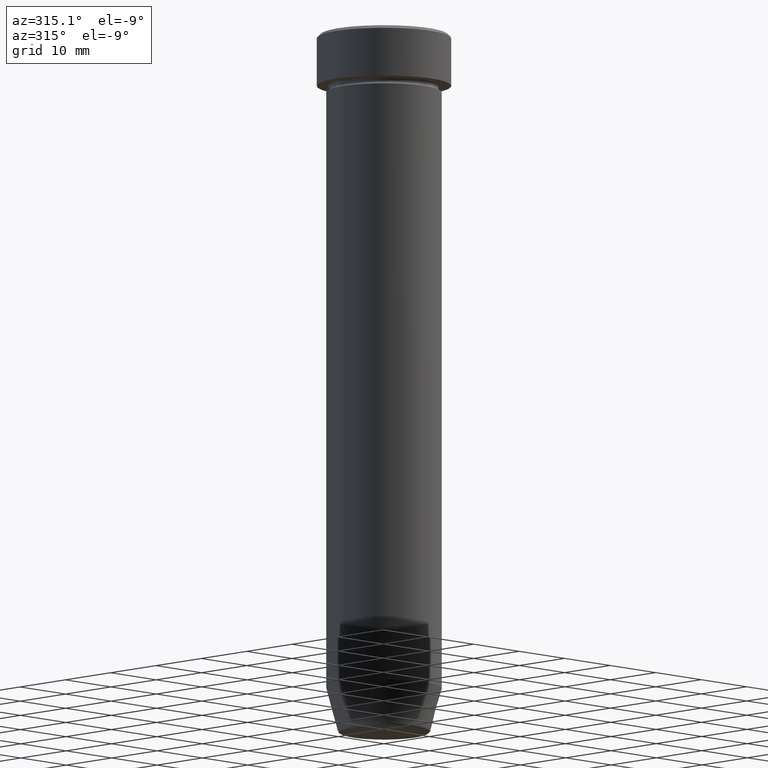
[diagram: clean part render]
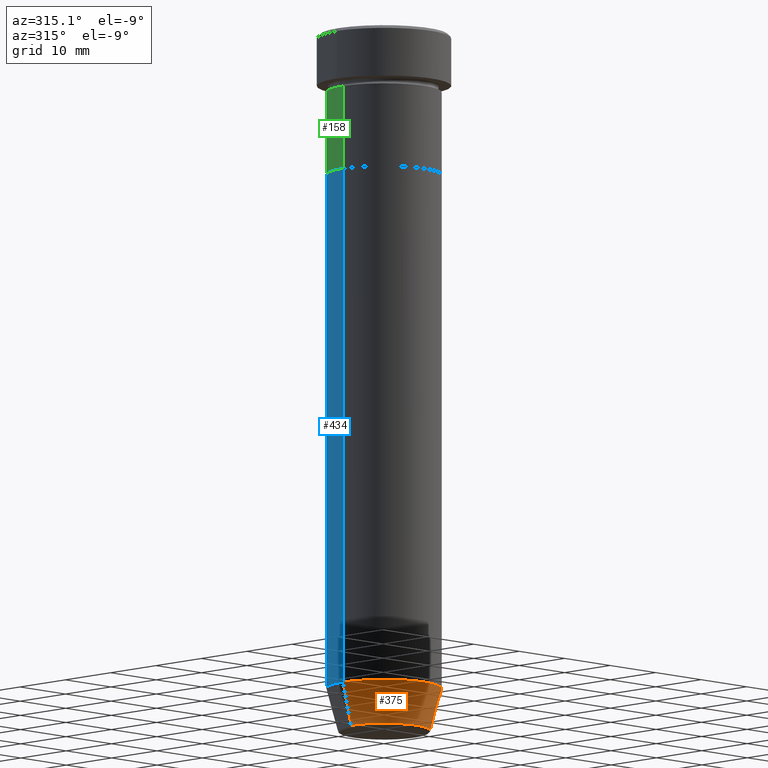
[diagram: same view with three faces highlighted in distinct colors, each labeled with its STEP entity id]
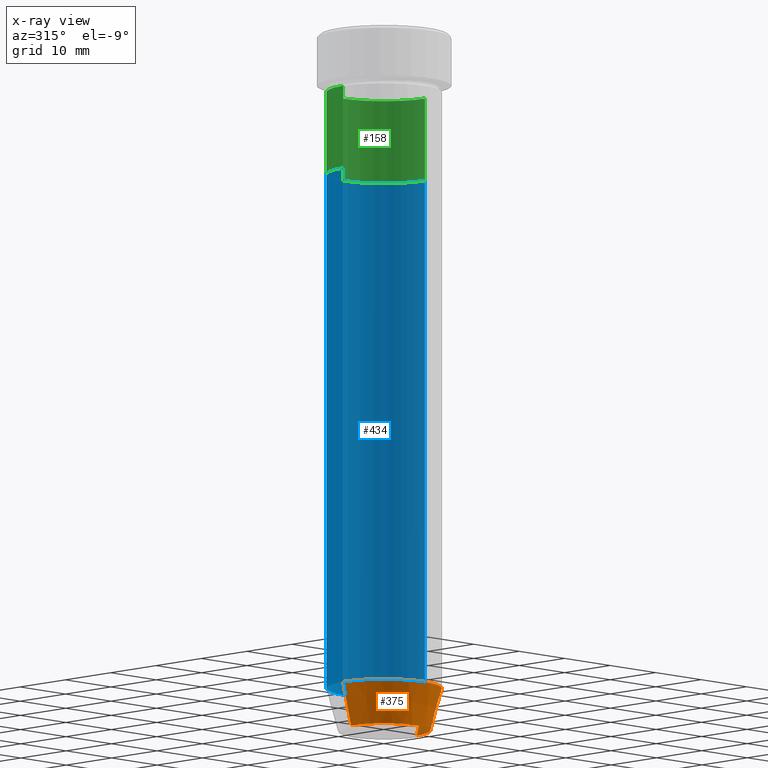
[diagram: x-ray of the same camera — body ghosted, the three highlighted faces saturated]
A machine part, auxiliary view with three faces highlighted in distinct colors.
The next image is the same camera in x-ray (body ghosted, the three faces saturated) — at least one of them is partly hidden behind the body in this view.
Their STEP definitions:

[orange] entity #375 — the highlighted conical surface has half-angle 15 deg.
#3 = FACE_OUTER_BOUND ( 'NONE', #287, .T. ) ;
#13 = DIRECTION ( 'NONE',  ( -0.000000000000000000, -0.000000000000000000, 1.000000000000000000 ) ) ;
#49 = DIRECTION ( 'NONE',  ( -0.000000000000000000, -0.000000000000000000, 1.000000000000000000 ) ) ;
#58 = DIRECTION ( 'NONE',  ( -0.2588190451025210725, 3.169619151431769255E-17, 0.9659258262890680902 ) ) ;
#66 = CARTESIAN_POINT ( 'NONE',  ( 7.124355652982136355, 0.000000000000000000, -109.9999999999999858 ) ) ;
#106 = EDGE_CURVE ( 'NONE', #110, #536, #145, .T. ) ;
#107 = VERTEX_POINT ( 'NONE', #270 ) ;
#110 = VERTEX_POINT ( 'NONE', #275 ) ;
#123 = VECTOR ( 'NONE', #58, 1000.000000000000114 ) ;
#139 = CONICAL_SURFACE ( 'NONE', #535, 7.124355652982136355, 0.2617993877991497964 ) ;
#145 = CIRCLE ( 'NONE', #466, 9.000000000000000000 ) ;
#164 = ORIENTED_EDGE ( 'NONE', *, *, #549, .T. ) ;
#171 = CIRCLE ( 'NONE', #594, 7.223655072137189492 ) ;
#190 = VERTEX_POINT ( 'NONE', #338 ) ;
#192 = EDGE_CURVE ( 'NONE', #190, #536, #307, .T. ) ;
#238 = EDGE_CURVE ( 'NONE', #107, #110, #255, .T. ) ;
#255 = LINE ( 'NONE', #482, #123 ) ;
#257 = CARTESIAN_POINT ( 'NONE',  ( 0.000000000000000000, 0.000000000000000000, -109.6294095225512564 ) ) ;
#270 = CARTESIAN_POINT ( 'NONE',  ( -7.223655072137189492, 9.934123627281763137E-16, -109.6294095225512564 ) ) ;
#275 = CARTESIAN_POINT ( 'NONE',  ( -9.000000000000000000, 1.102182119232617714E-15, -102.9999999999999858 ) ) ;
#287 = EDGE_LOOP ( 'NONE', ( #380, #164, #577, #344 ) ) ;
#305 = VECTOR ( 'NONE', #435, 1000.000000000000114 ) ;
#307 = LINE ( 'NONE', #66, #305 ) ;
#328 = CARTESIAN_POINT ( 'NONE',  ( 0.000000000000000000, 0.000000000000000000, -109.9999999999999858 ) ) ;
#337 = DIRECTION ( 'NONE',  ( 1.000000000000000000, 0.000000000000000000, 0.000000000000000000 ) ) ;
#338 = CARTESIAN_POINT ( 'NONE',  ( 7.223655072137189492, 0.000000000000000000, -109.6294095225512564 ) ) ;
#344 = ORIENTED_EDGE ( 'NONE', *, *, #106, .F. ) ;
#348 = DIRECTION ( 'NONE',  ( -0.000000000000000000, -0.000000000000000000, 1.000000000000000000 ) ) ;
#375 = ADVANCED_FACE ( 'NONE', ( #3 ), #139, .T. ) ;
#380 = ORIENTED_EDGE ( 'NONE', *, *, #238, .F. ) ;
#391 = CARTESIAN_POINT ( 'NONE',  ( 9.000000000000000000, 0.000000000000000000, -102.9999999999999858 ) ) ;
#427 = DIRECTION ( 'NONE',  ( 1.000000000000000000, 0.000000000000000000, 0.000000000000000000 ) ) ;
#431 = CARTESIAN_POINT ( 'NONE',  ( 0.000000000000000000, 0.000000000000000000, -102.9999999999999858 ) ) ;
#435 = DIRECTION ( 'NONE',  ( 0.2588190451025210725, 0.000000000000000000, 0.9659258262890680902 ) ) ;
#466 = AXIS2_PLACEMENT_3D ( 'NONE', #431, #49, #427 ) ;
#482 = CARTESIAN_POINT ( 'NONE',  ( -7.124355652982136355, 8.724819346411924116E-16, -109.9999999999999858 ) ) ;
#535 = AXIS2_PLACEMENT_3D ( 'NONE', #328, #13, #337 ) ;
#536 = VERTEX_POINT ( 'NONE', #391 ) ;
#540 = DIRECTION ( 'NONE',  ( -1.000000000000000000, 0.000000000000000000, 0.000000000000000000 ) ) ;
#549 = EDGE_CURVE ( 'NONE', #107, #190, #171, .T. ) ;
#577 = ORIENTED_EDGE ( 'NONE', *, *, #192, .T. ) ;
#594 = AXIS2_PLACEMENT_3D ( 'NONE', #257, #348, #540 ) ;

[blue] entity #434 — the highlighted cylindrical surface (partial cylindrical patch) has radius 9 mm, axis along (-0, -0, 1).
#10 = VERTEX_POINT ( 'NONE', #160 ) ;
#18 = CARTESIAN_POINT ( 'NONE',  ( 0.000000000000000000, 0.000000000000000000, -102.9999999999999858 ) ) ;
#56 = ORIENTED_EDGE ( 'NONE', *, *, #417, .T. ) ;
#67 = CIRCLE ( 'NONE', #525, 9.000000000000000000 ) ;
#99 = ORIENTED_EDGE ( 'NONE', *, *, #269, .F. ) ;
#110 = VERTEX_POINT ( 'NONE', #275 ) ;
#138 = DIRECTION ( 'NONE',  ( -0.000000000000000000, -0.000000000000000000, 1.000000000000000000 ) ) ;
#141 = CIRCLE ( 'NONE', #212, 9.000000000000000000 ) ;
#160 = CARTESIAN_POINT ( 'NONE',  ( -9.000000000000000000, 1.102182119232617714E-15, -22.00000000000000000 ) ) ;
#166 = ORIENTED_EDGE ( 'NONE', *, *, #297, .T. ) ;
#181 = LINE ( 'NONE', #558, #362 ) ;
#191 = DIRECTION ( 'NONE',  ( 1.000000000000000000, 0.000000000000000000, 0.000000000000000000 ) ) ;
#195 = CARTESIAN_POINT ( 'NONE',  ( -9.000000000000000000, 1.102182119232617714E-15, 0.000000000000000000 ) ) ;
#207 = EDGE_LOOP ( 'NONE', ( #166, #56, #99, #239 ) ) ;
#212 = AXIS2_PLACEMENT_3D ( 'NONE', #442, #400, #446 ) ;
#236 = CARTESIAN_POINT ( 'NONE',  ( 0.000000000000000000, 0.000000000000000000, 0.000000000000000000 ) ) ;
#239 = ORIENTED_EDGE ( 'NONE', *, *, #398, .F. ) ;
#258 = DIRECTION ( 'NONE',  ( -0.000000000000000000, -0.000000000000000000, 1.000000000000000000 ) ) ;
#269 = EDGE_CURVE ( 'NONE', #394, #10, #141, .T. ) ;
#275 = CARTESIAN_POINT ( 'NONE',  ( -9.000000000000000000, 1.102182119232617714E-15, -102.9999999999999858 ) ) ;
#279 = CYLINDRICAL_SURFACE ( 'NONE', #314, 9.000000000000000000 ) ;
#288 = FACE_OUTER_BOUND ( 'NONE', #207, .T. ) ;
#297 = EDGE_CURVE ( 'NONE', #536, #110, #67, .T. ) ;
#314 = AXIS2_PLACEMENT_3D ( 'NONE', #236, #138, #191 ) ;
#331 = DIRECTION ( 'NONE',  ( -0.000000000000000000, -0.000000000000000000, 1.000000000000000000 ) ) ;
#362 = VECTOR ( 'NONE', #331, 1000.000000000000000 ) ;
#376 = DIRECTION ( 'NONE',  ( -0.000000000000000000, -0.000000000000000000, 1.000000000000000000 ) ) ;
#391 = CARTESIAN_POINT ( 'NONE',  ( 9.000000000000000000, 0.000000000000000000, -102.9999999999999858 ) ) ;
#394 = VERTEX_POINT ( 'NONE', #423 ) ;
#398 = EDGE_CURVE ( 'NONE', #536, #394, #181, .T. ) ;
#400 = DIRECTION ( 'NONE',  ( -0.000000000000000000, -0.000000000000000000, 1.000000000000000000 ) ) ;
#417 = EDGE_CURVE ( 'NONE', #110, #10, #528, .T. ) ;
#423 = CARTESIAN_POINT ( 'NONE',  ( 9.000000000000000000, 0.000000000000000000, -22.00000000000000000 ) ) ;
#434 = ADVANCED_FACE ( 'NONE', ( #288 ), #279, .T. ) ;
#442 = CARTESIAN_POINT ( 'NONE',  ( 0.000000000000000000, 0.000000000000000000, -22.00000000000000000 ) ) ;
#446 = DIRECTION ( 'NONE',  ( 1.000000000000000000, 0.000000000000000000, 0.000000000000000000 ) ) ;
#525 = AXIS2_PLACEMENT_3D ( 'NONE', #18, #258, #534 ) ;
#528 = LINE ( 'NONE', #195, #593 ) ;
#534 = DIRECTION ( 'NONE',  ( 1.000000000000000000, 0.000000000000000000, 0.000000000000000000 ) ) ;
#536 = VERTEX_POINT ( 'NONE', #391 ) ;
#558 = CARTESIAN_POINT ( 'NONE',  ( 9.000000000000000000, 0.000000000000000000, 0.000000000000000000 ) ) ;
#593 = VECTOR ( 'NONE', #376, 1000.000000000000000 ) ;

[green] entity #158 — the highlighted cylindrical surface (partial cylindrical patch) has radius 9 mm, axis along (-0, -0, 1).
#9 = DIRECTION ( 'NONE',  ( -0.000000000000000000, -0.000000000000000000, 1.000000000000000000 ) ) ;
#16 = CARTESIAN_POINT ( 'NONE',  ( 9.000000000000000000, 0.000000000000000000, 0.000000000000000000 ) ) ;
#19 = AXIS2_PLACEMENT_3D ( 'NONE', #111, #105, #581 ) ;
#61 = LINE ( 'NONE', #16, #363 ) ;
#65 = CARTESIAN_POINT ( 'NONE',  ( -9.000000000000000000, 1.102182119232617714E-15, -22.00000000000000000 ) ) ;
#73 = EDGE_CURVE ( 'NONE', #533, #155, #467, .T. ) ;
#87 = FACE_OUTER_BOUND ( 'NONE', #502, .T. ) ;
#105 = DIRECTION ( 'NONE',  ( -0.000000000000000000, -0.000000000000000000, 1.000000000000000000 ) ) ;
#111 = CARTESIAN_POINT ( 'NONE',  ( 0.000000000000000000, 0.000000000000000000, -9.000000000000001776 ) ) ;
#115 = DIRECTION ( 'NONE',  ( -0.000000000000000000, -0.000000000000000000, 1.000000000000000000 ) ) ;
#155 = VERTEX_POINT ( 'NONE', #507 ) ;
#158 = ADVANCED_FACE ( 'NONE', ( #87 ), #569, .T. ) ;
#169 = VERTEX_POINT ( 'NONE', #598 ) ;
#256 = VERTEX_POINT ( 'NONE', #342 ) ;
#278 = EDGE_CURVE ( 'NONE', #256, #533, #351, .T. ) ;
#299 = CARTESIAN_POINT ( 'NONE',  ( 0.000000000000000000, 0.000000000000000000, -22.00000000000000000 ) ) ;
#310 = EDGE_CURVE ( 'NONE', #169, #155, #492, .T. ) ;
#323 = CARTESIAN_POINT ( 'NONE',  ( -9.000000000000000000, 1.102182119232617714E-15, 0.000000000000000000 ) ) ;
#335 = DIRECTION ( 'NONE',  ( -0.000000000000000000, -0.000000000000000000, 1.000000000000000000 ) ) ;
#342 = CARTESIAN_POINT ( 'NONE',  ( 9.000000000000000000, 0.000000000000000000, -22.00000000000000000 ) ) ;
#351 = CIRCLE ( 'NONE', #378, 9.000000000000000000 ) ;
#363 = VECTOR ( 'NONE', #588, 1000.000000000000000 ) ;
#378 = AXIS2_PLACEMENT_3D ( 'NONE', #299, #115, #524 ) ;
#432 = ORIENTED_EDGE ( 'NONE', *, *, #310, .F. ) ;
#451 = AXIS2_PLACEMENT_3D ( 'NONE', #464, #335, #520 ) ;
#464 = CARTESIAN_POINT ( 'NONE',  ( 0.000000000000000000, 0.000000000000000000, 0.000000000000000000 ) ) ;
#467 = LINE ( 'NONE', #323, #504 ) ;
#475 = ORIENTED_EDGE ( 'NONE', *, *, #73, .T. ) ;
#492 = CIRCLE ( 'NONE', #19, 9.000000000000000000 ) ;
#502 = EDGE_LOOP ( 'NONE', ( #567, #475, #432, #587 ) ) ;
#504 = VECTOR ( 'NONE', #9, 1000.000000000000000 ) ;
#507 = CARTESIAN_POINT ( 'NONE',  ( -9.000000000000000000, 1.102182119232617714E-15, -9.000000000000001776 ) ) ;
#520 = DIRECTION ( 'NONE',  ( 1.000000000000000000, 0.000000000000000000, 0.000000000000000000 ) ) ;
#524 = DIRECTION ( 'NONE',  ( 1.000000000000000000, 0.000000000000000000, 0.000000000000000000 ) ) ;
#533 = VERTEX_POINT ( 'NONE', #65 ) ;
#567 = ORIENTED_EDGE ( 'NONE', *, *, #278, .T. ) ;
#569 = CYLINDRICAL_SURFACE ( 'NONE', #451, 9.000000000000000000 ) ;
#573 = EDGE_CURVE ( 'NONE', #256, #169, #61, .T. ) ;
#581 = DIRECTION ( 'NONE',  ( 1.000000000000000000, 0.000000000000000000, 0.000000000000000000 ) ) ;
#587 = ORIENTED_EDGE ( 'NONE', *, *, #573, .F. ) ;
#588 = DIRECTION ( 'NONE',  ( -0.000000000000000000, -0.000000000000000000, 1.000000000000000000 ) ) ;
#598 = CARTESIAN_POINT ( 'NONE',  ( 9.000000000000000000, 0.000000000000000000, -9.000000000000001776 ) ) ;